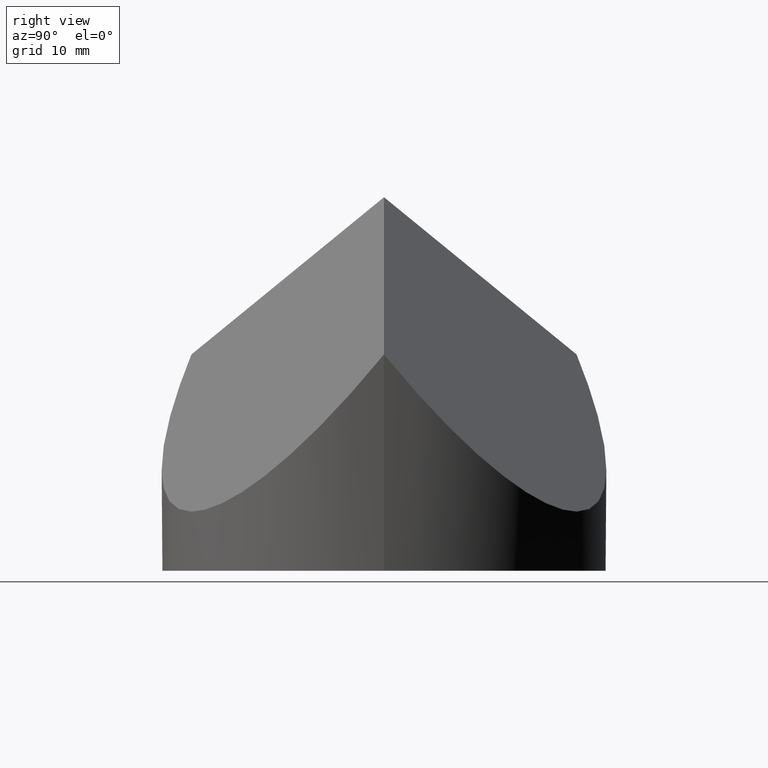
[diagram: clean part render]
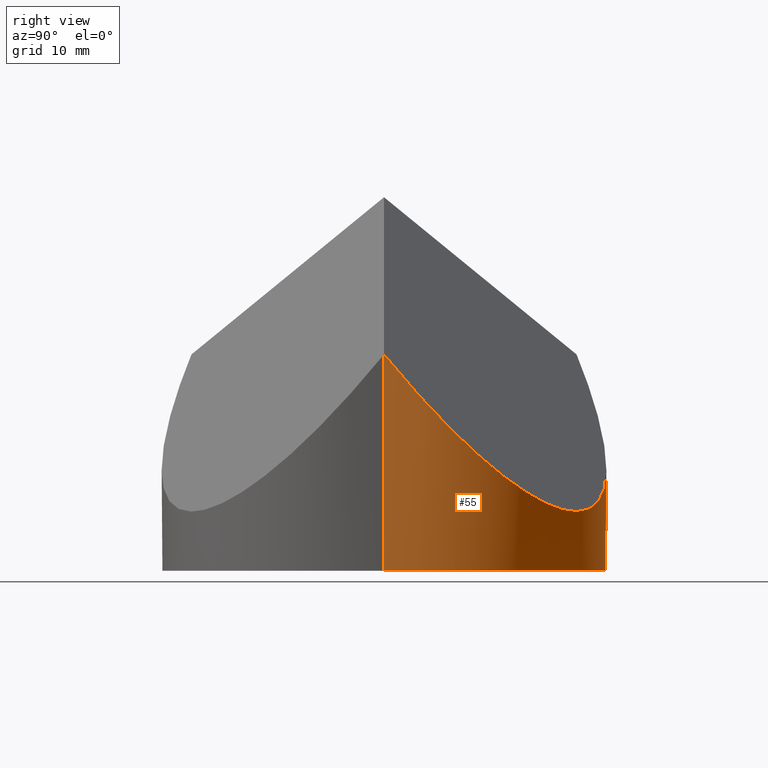
[diagram: same view with one face highlighted and labeled with its STEP entity id]
A machine part, right view. The second image highlights one B-rep face of the part: STEP entity #55.
In plain terms, the highlighted cylindrical surface (partial cylindrical patch) has radius 25 mm, axis along (-0, -0, -1).
Its self-contained STEP definition (entity closure, byte-faithful):
#13 = DIRECTION ( 'NONE',  ( -1.000000000000000000, 0.0000000000000000000, 0.0000000000000000000 ) ) ;
#15 = EDGE_CURVE ( 'NONE', #221, #181, #31, .T. ) ;
#31 = LINE ( 'NONE', #183, #81 ) ;
#32 = AXIS2_PLACEMENT_3D ( 'NONE', #268, #240, #13 ) ;
#55 = ADVANCED_FACE ( 'NONE', ( #149 ), #225, .T. ) ;
#58 = VERTEX_POINT ( 'NONE', #132 ) ;
#61 = CARTESIAN_POINT ( 'NONE',  ( 0.0000000000000000000, 0.0000000000000000000, 0.0000000000000000000 ) ) ;
#64 = CARTESIAN_POINT ( 'NONE',  ( -12.50000000000003000, 21.65063509461094800, 24.32600190598650900 ) ) ;
#65 = CARTESIAN_POINT ( 'NONE',  ( -25.00000000000000000, 0.0000000000000000000, 42.00000000000000000 ) ) ;
#69 = CARTESIAN_POINT ( 'NONE',  ( -20.42468245269453300, 17.07531754730545600, 13.12113610081974900 ) ) ;
#79 = EDGE_CURVE ( 'NONE', #181, #115, #282, .T. ) ;
#81 = VECTOR ( 'NONE', #161, 1000.000000000000000 ) ;
#100 = EDGE_CURVE ( 'NONE', #221, #247, #232, .T. ) ;
#103 = LINE ( 'NONE', #65, #157 ) ;
#104 = AXIS2_PLACEMENT_3D ( 'NONE', #61, #111, #236 ) ;
#111 = DIRECTION ( 'NONE',  ( 0.0000000000000000000, 0.0000000000000000000, 1.000000000000000000 ) ) ;
#112 = CARTESIAN_POINT ( 'NONE',  ( -25.00000000000000400, 9.150635094610953100, 6.652003811973095500 ) ) ;
#115 = VERTEX_POINT ( 'NONE', #158 ) ;
#119 = CARTESIAN_POINT ( 'NONE',  ( 25.00000000000001400, -4.874894994984150700E-015, 24.32600190598661900 ) ) ;
#132 = CARTESIAN_POINT ( 'NONE',  ( -25.00000000000000000, 0.0000000000000000000, 6.652003811973103500 ) ) ;
#135 = EDGE_LOOP ( 'NONE', ( #176, #283, #206, #155, #144 ) ) ;
#144 = ORIENTED_EDGE ( 'NONE', *, *, #173, .T. ) ;
#149 = FACE_OUTER_BOUND ( 'NONE', #135, .T. ) ;
#155 = ORIENTED_EDGE ( 'NONE', *, *, #261, .F. ) ;
#157 = VECTOR ( 'NONE', #164, 1000.000000000000000 ) ;
#158 = CARTESIAN_POINT ( 'NONE',  ( -25.00000000000000000, 0.0000000000000000000, 0.0000000000000000000 ) ) ;
#161 = DIRECTION ( 'NONE',  ( -0.0000000000000000000, -0.0000000000000000000, -1.000000000000000000 ) ) ;
#164 = DIRECTION ( 'NONE',  ( -0.0000000000000000000, -0.0000000000000000000, -1.000000000000000000 ) ) ;
#173 = EDGE_CURVE ( 'NONE', #58, #247, #192, .T. ) ;
#176 = ORIENTED_EDGE ( 'NONE', *, *, #100, .F. ) ;
#181 = VERTEX_POINT ( 'NONE', #312 ) ;
#183 = CARTESIAN_POINT ( 'NONE',  ( 25.00000000000000000, 3.061616997868382300E-015, 42.00000000000000000 ) ) ;
#192 =( BOUNDED_CURVE ( )  B_SPLINE_CURVE ( 3, ( #239, #112, #69, #64 ),
 .UNSPECIFIED., .F., .T. ) 
 B_SPLINE_CURVE_WITH_KNOTS ( ( 4, 4 ),
 ( 0.0000000000000000000, 1.047197551196596300 ),
 .UNSPECIFIED. ) 
 CURVE ( )  GEOMETRIC_REPRESENTATION_ITEM ( )  RATIONAL_B_SPLINE_CURVE ( ( 1.000000000000000000, 0.9106836025229593200, 0.9106836025229593200, 1.000000000000000000 ) ) 
 REPRESENTATION_ITEM ( '' )  );
#206 = ORIENTED_EDGE ( 'NONE', *, *, #79, .T. ) ;
#218 = CARTESIAN_POINT ( 'NONE',  ( -12.50000000000003000, 21.65063509461094800, 24.32600190598650900 ) ) ;
#221 = VERTEX_POINT ( 'NONE', #119 ) ;
#225 = CYLINDRICAL_SURFACE ( 'NONE', #32, 25.00000000000000000 ) ;
#232 =( BOUNDED_CURVE ( )  B_SPLINE_CURVE ( 3, ( #266, #285, #305, #287 ),
 .UNSPECIFIED., .F., .F. ) 
 B_SPLINE_CURVE_WITH_KNOTS ( ( 4, 4 ),
 ( 5.235987755982985300, 7.330382858376182800 ),
 .UNSPECIFIED. ) 
 CURVE ( )  GEOMETRIC_REPRESENTATION_ITEM ( )  RATIONAL_B_SPLINE_CURVE ( ( 1.000000000000000000, 0.6666666666666660700, 0.6666666666666660700, 1.000000000000000000 ) ) 
 REPRESENTATION_ITEM ( '' )  );
#236 = DIRECTION ( 'NONE',  ( 1.000000000000000000, 0.0000000000000000000, 0.0000000000000000000 ) ) ;
#239 = CARTESIAN_POINT ( 'NONE',  ( -25.00000000000000000, 0.0000000000000000000, 6.652003811973103500 ) ) ;
#240 = DIRECTION ( 'NONE',  ( -0.0000000000000000000, -0.0000000000000000000, -1.000000000000000000 ) ) ;
#247 = VERTEX_POINT ( 'NONE', #218 ) ;
#261 = EDGE_CURVE ( 'NONE', #58, #115, #103, .T. ) ;
#266 = CARTESIAN_POINT ( 'NONE',  ( 25.00000000000001400, -4.874894994984150700E-015, 24.32600190598661900 ) ) ;
#268 = CARTESIAN_POINT ( 'NONE',  ( 0.0000000000000000000, 0.0000000000000000000, 42.00000000000000000 ) ) ;
#282 = CIRCLE ( 'NONE', #104, 25.00000000000000000 ) ;
#283 = ORIENTED_EDGE ( 'NONE', *, *, #15, .T. ) ;
#285 = CARTESIAN_POINT ( 'NONE',  ( 25.00000000000001800, 21.65063509461097600, -2.184995235033643900 ) ) ;
#287 = CARTESIAN_POINT ( 'NONE',  ( -12.50000000000003000, 21.65063509461094800, 24.32600190598650900 ) ) ;
#305 = CARTESIAN_POINT ( 'NONE',  ( 6.249999999999983100, 32.47595264191647900, -2.184995235033713200 ) ) ;
#312 = CARTESIAN_POINT ( 'NONE',  ( 25.00000000000000000, 3.061616997868382300E-015, 0.0000000000000000000 ) ) ;